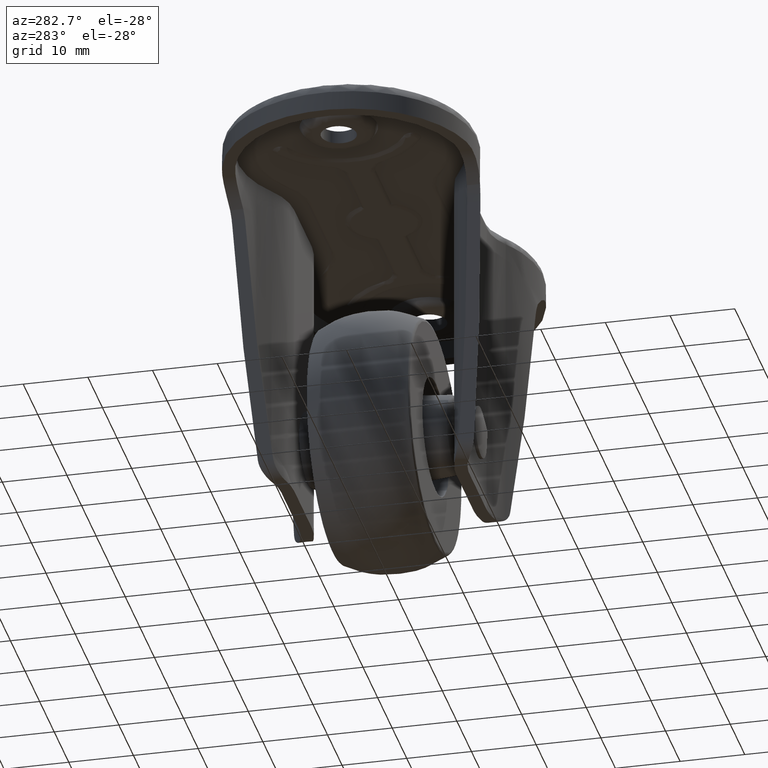
[diagram: clean part render]
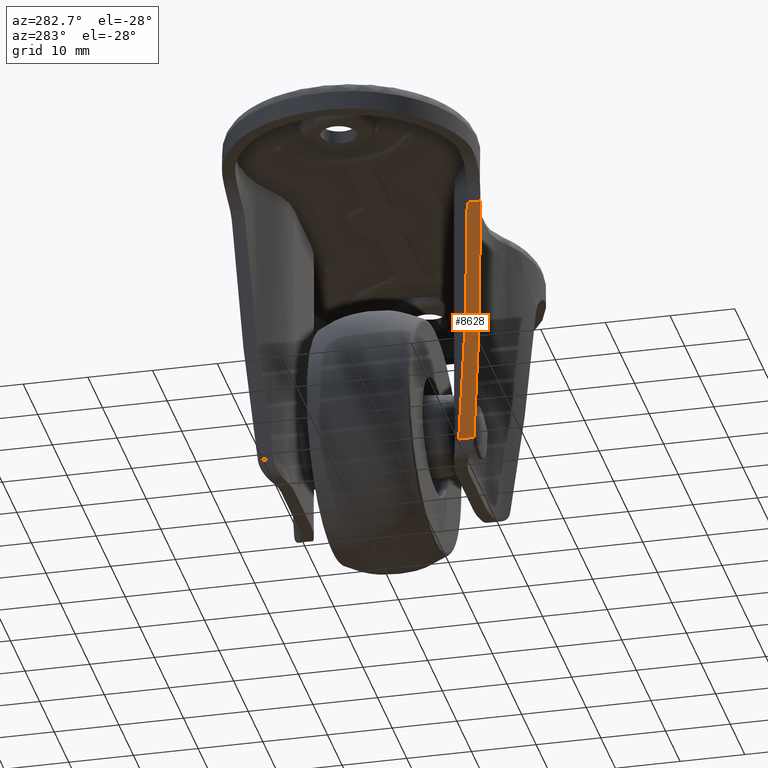
[diagram: same view with one face highlighted and labeled with its STEP entity id]
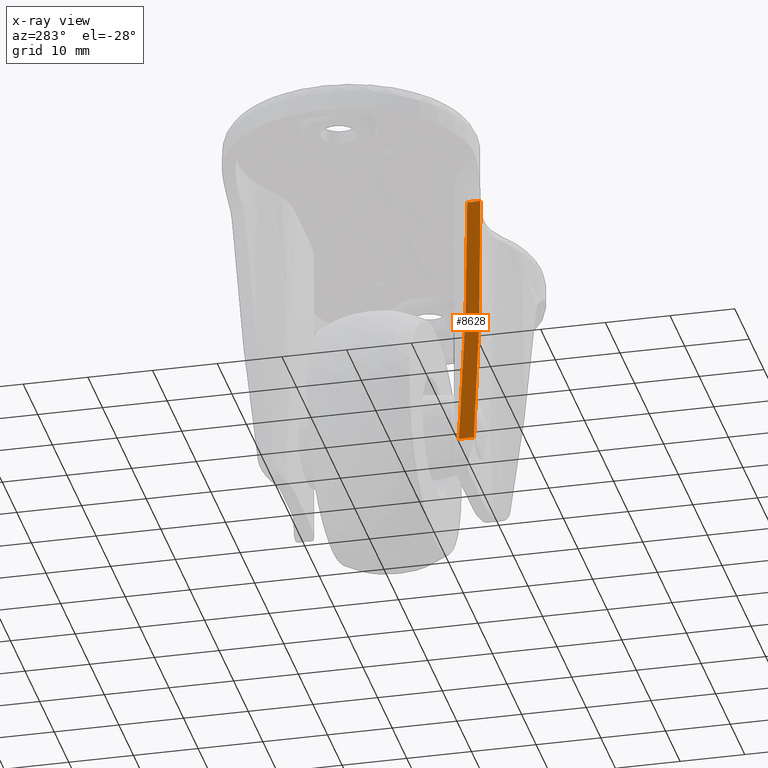
[diagram: x-ray of the same camera — body ghosted, the highlighted face saturated]
A machine part, auxiliary view. The second image highlights one B-rep face of the part: STEP entity #8628.
The next image is the same camera in x-ray: the body ghosted, the highlighted face saturated — about 0% of this face is hidden behind the body in this view.
In plain terms, the highlighted face is a freeform B-spline surface patch.
Its self-contained STEP definition (entity closure, byte-faithful):
#8562=CARTESIAN_POINT('',(-19.238315485037479,-19.409238017579810,-8.949475694037812));
#8563=CARTESIAN_POINT('',(-12.113566792486560,-19.409238017579810,-49.355929953045781));
#8564=CARTESIAN_POINT('',(-19.238315485037479,-14.087874376122620,-8.949475694037812));
#8565=CARTESIAN_POINT('',(-12.113566792486560,-14.087874376122620,-49.355929953045781));
#8566=B_SPLINE_SURFACE_WITH_KNOTS('',1,1,((#8562,#8564),(#8563,#8565)),.UNSPECIFIED.,.F.,.F.,.U.,(2,2),(2,2),(0.0,41.029789052800531),(0.0,5.321363641457191),.UNSPECIFIED.);
#8567=CARTESIAN_POINT('',(-18.914757728914651,-17.128807251458650,-10.784462756331500));
#8568=VERTEX_POINT('',#8567);
#8569=CARTESIAN_POINT('',(-18.914757728914651,-19.167577777529001,-10.784462756331500));
#8570=VERTEX_POINT('',#8569);
#8571=CARTESIAN_POINT('',(-18.914757728914651,-17.128807251458650,-10.784462756331500));
#8572=CARTESIAN_POINT('',(-18.914757728914651,-19.167577777529001,-10.784462756331500));
#8573=QUASI_UNIFORM_CURVE('',1,(#8571,#8572),.UNSPECIFIED.,.F.,.U.);
#8574=EDGE_CURVE('',#8568,#8570,#8573,.T.);
#8575=ORIENTED_EDGE('',*,*,#8574,.F.);
#8576=CARTESIAN_POINT('',(-12.752395133952280,-14.533898285573720,-45.732954705402300));
#8577=VERTEX_POINT('',#8576);
#8578=CARTESIAN_POINT('',(-12.752395133952270,-14.533898285573731,-45.732954705402278));
#8579=CARTESIAN_POINT('',(-15.581059003161267,-16.431028508597475,-29.690806107964598));
#8580=CARTESIAN_POINT('',(-18.914757728914630,-17.128807251458660,-10.784462756331530));
#8588=(BOUNDED_CURVE()B_SPLINE_CURVE(2,(#8578,#8579,#8580),.UNSPECIFIED.,.F.,.U.)CURVE()GEOMETRIC_REPRESENTATION_ITEM()QUASI_UNIFORM_CURVE()RATIONAL_B_SPLINE_CURVE((1.0,0.981582119286860,1.0))REPRESENTATION_ITEM(''));
#8589=EDGE_CURVE('',#8577,#8568,#8588,.T.);
#8590=ORIENTED_EDGE('',*,*,#8589,.F.);
#8591=CARTESIAN_POINT('',(-12.437124259036620,-14.329534399896040,-47.520944533000801));
#8592=VERTEX_POINT('',#8591);
#8593=CARTESIAN_POINT('',(-12.752395133952280,-14.533898285573720,-45.732954705402300));
#8594=CARTESIAN_POINT('',(-12.596359521768996,-14.429248306606480,-46.617876559986712));
#8595=CARTESIAN_POINT('',(-12.437124259036620,-14.329534399896040,-47.520944533000801));
#8603=(BOUNDED_CURVE()B_SPLINE_CURVE(2,(#8593,#8594,#8595),.UNSPECIFIED.,.F.,.U.)CURVE()GEOMETRIC_REPRESENTATION_ITEM()QUASI_UNIFORM_CURVE()RATIONAL_B_SPLINE_CURVE((1.0,0.999877457640249,1.0))REPRESENTATION_ITEM(''));
#8604=EDGE_CURVE('',#8577,#8592,#8603,.T.);
#8605=ORIENTED_EDGE('',*,*,#8604,.T.);
#8606=CARTESIAN_POINT('',(-12.437124259036620,-16.702949794031099,-47.520944533000801));
#8607=VERTEX_POINT('',#8606);
#8608=CARTESIAN_POINT('',(-12.437124259036620,-14.329534399896040,-47.520944533000801));
#8609=CARTESIAN_POINT('',(-12.437124259036620,-16.702949794031099,-47.520944533000801));
#8610=QUASI_UNIFORM_CURVE('',1,(#8608,#8609),.UNSPECIFIED.,.F.,.U.);
#8611=EDGE_CURVE('',#8592,#8607,#8610,.T.);
#8612=ORIENTED_EDGE('',*,*,#8611,.T.);
#8613=CARTESIAN_POINT('',(-18.914757728914651,-19.167577777529001,-10.784462756331500));
#8614=CARTESIAN_POINT('',(-15.453405143550103,-18.520141374859069,-30.414767059002351));
#8615=CARTESIAN_POINT('',(-12.437124259036620,-16.702949794031099,-47.520944533000801));
#8623=(BOUNDED_CURVE()B_SPLINE_CURVE(2,(#8613,#8614,#8615),.UNSPECIFIED.,.F.,.U.)CURVE()GEOMETRIC_REPRESENTATION_ITEM()QUASI_UNIFORM_CURVE()RATIONAL_B_SPLINE_CURVE((1.0,0.984083013639425,1.0))REPRESENTATION_ITEM(''));
#8624=EDGE_CURVE('',#8570,#8607,#8623,.T.);
#8625=ORIENTED_EDGE('',*,*,#8624,.F.);
#8626=EDGE_LOOP('',(#8575,#8590,#8605,#8612,#8625));
#8627=FACE_OUTER_BOUND('',#8626,.T.);
#8628=ADVANCED_FACE('',(#8627),#8566,.F.);